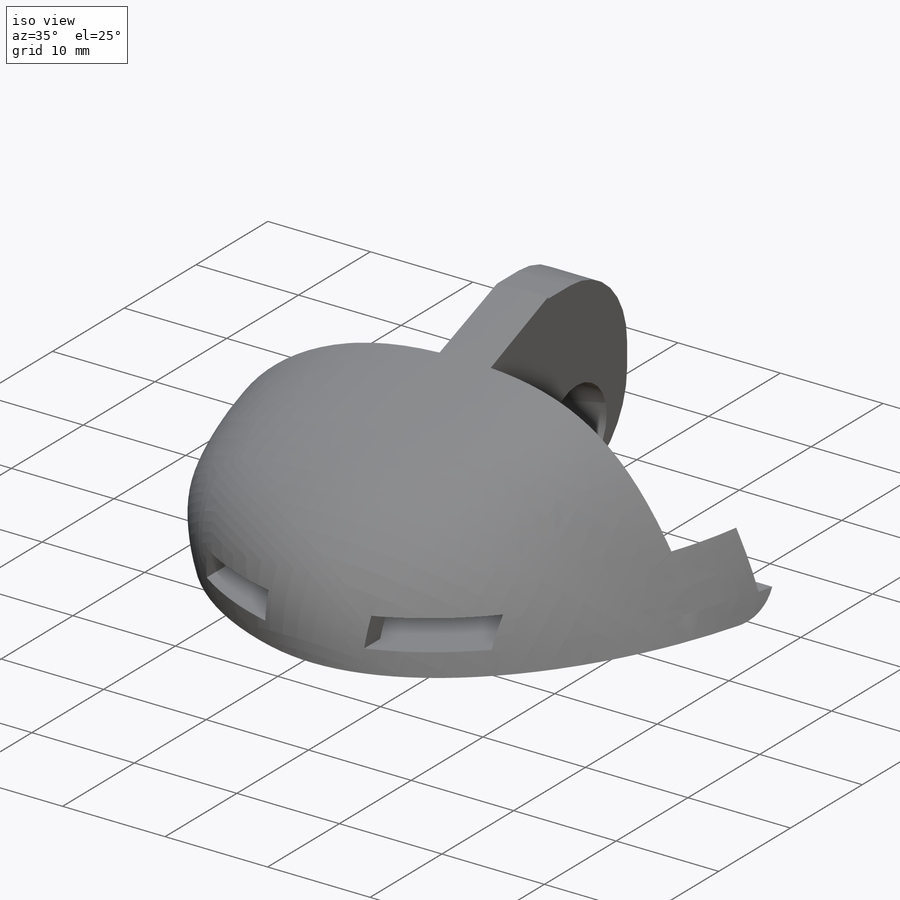
[diagram: iso view]
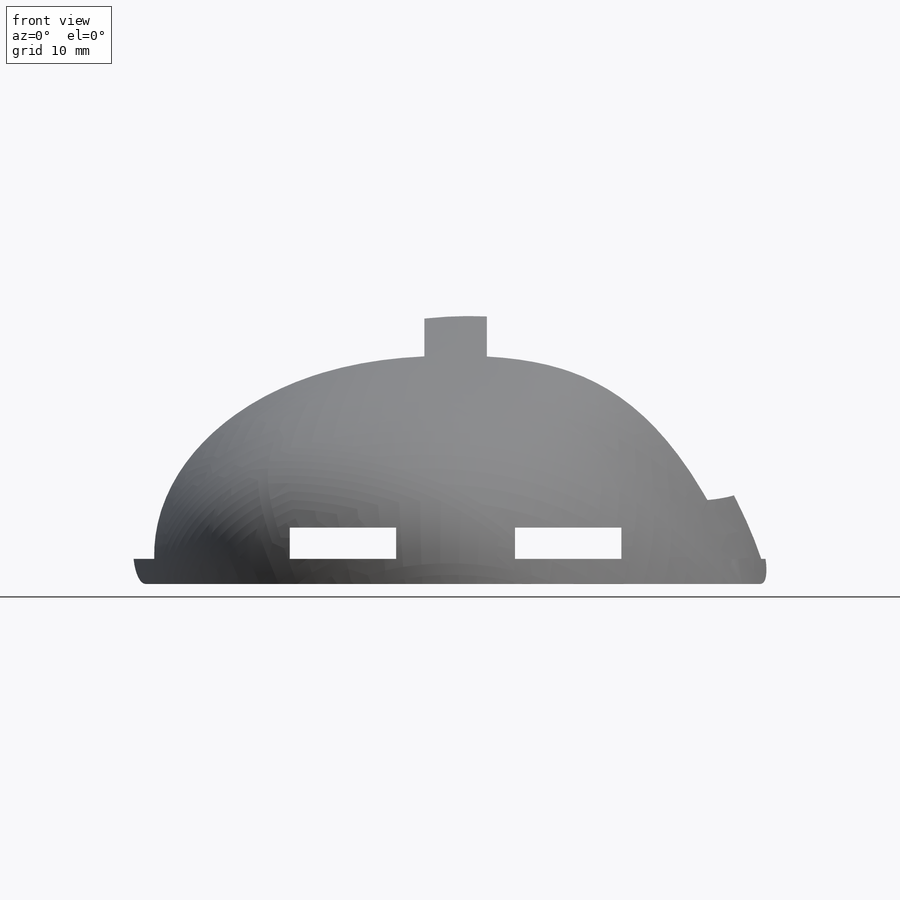
[diagram: front view]
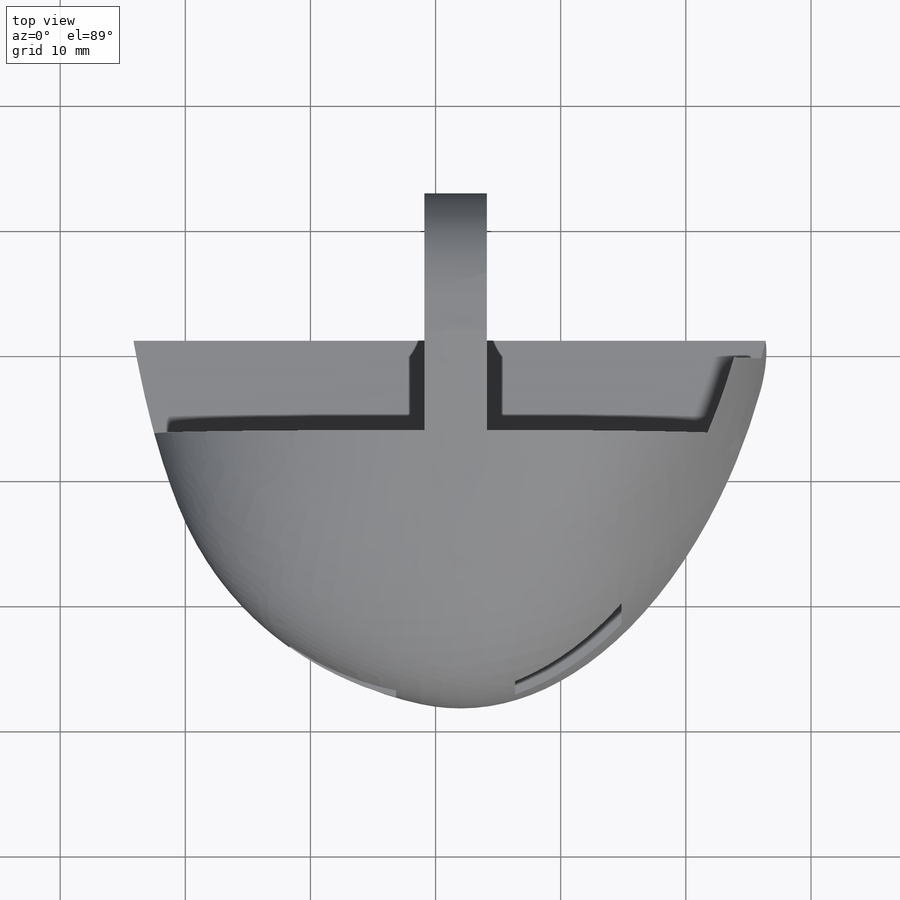
[diagram: top view]
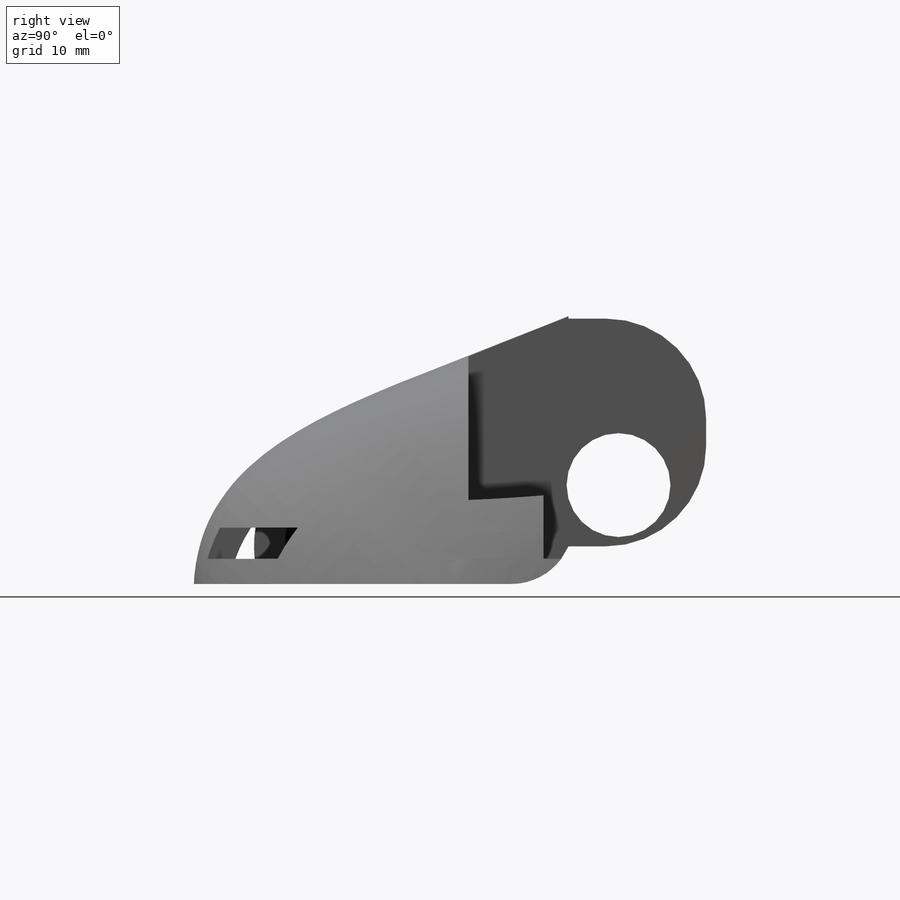
[diagram: right view]
SOLIDWORKS PART (.sldprt)
format: sldprt  version: not decoded by parser v0  size: 13,806,592 bytes
history: native  units: mm
features: sketch x45, plane x20, cut_extrude x9, extrude x4, fillet x4, material x1, shell x1, mirror x1, delete_body x1 + 1 further entry (+14 scaffold rows collapsed; 3 parser-record rows omitted)
feature tree (104):
  scaffold x14  (default folders/planes/origin — collapsed)
  material  "Polyamide"
  plane  "Plan de face"
  plane  "Plan de dessus"
  plane  "Plan de droite"
  plane  "Front Plane-new_foot"
  plane  "Top Plane-new_foot"
  plane  "Right Plane-new_foot"
  sketch  "lateral_dimensions-new_foot"  dims[D1=51.0mm D2=98.0mm D3=47.0mm D4=29.8mm D5=104.3mm D6=134.1mm D7=31.8mm D8=4.0mm D9=15.0mm]
  sketch  "planes_positions-new_foot"
  sketch  "top_dimensions-new_foot"  dims[c1.D1=28.5mm c1.D2=26.0mm c2.D1=26.0mm c2.D2=28.5mm]
  sketch  "lateral_shape-new_foot"
  plane  "sole_plane-new_foot"
  sketch  "sole_shape-new_foot"  dims[D1=~51.73616mm]
  plane  "mid_top_plane-new_foot"
  sketch  "mid_top_dimensions-new_foot"
  sketch  "Sketch1-new_foot"
  plane  "Plane2-new_foot"
  sketch  "Sketch2-new_foot"
  plane  "Plane3-new_foot"
  sketch  "Sketch3-new_foot"
  plane  "Plane4-new_foot"
  sketch  "Sketch4-new_foot"
  plane  "Plane6-new_foot"
  sketch  "Sketch6-new_foot"
  plane  "Plane8-new_foot"
  sketch  "Sketch8-new_foot"
  plane  "Plane9-new_foot"
  sketch  "Sketch9-new_foot"
  plane  "Plane7-new_foot"
  sketch  "3DSketch3-new_foot"
  sketch  "3DSketch8-new_foot"
  sketch  "3DSketch9-new_foot"
  sketch  "3DSketch1-new_foot"
  sketch  "3DSketch2-new_foot"
  sketch  "3DSketch6-new_foot"
  sketch  "3DSketch4-new_foot"
  sketch  "3DSketch5-new_foot"
  plane  "Plane11-new_foot"
  sketch  "Sketch22-new_foot"
  sketch  "Sketch24-new_foot"  dims[D1=1.0mm]
  sketch  "Sketch26-new_foot"
  sketch  "Sketch27-new_foot"  dims[D1=18.0mm]
  sketch  "Sketch28-new_foot"  dims[c1.D1=16.0mm c1.D2=16.0mm c1.D3=16.0mm c2.D2=9.0mm c2.D3=2.0mm]
  plane  "Plane10-new_foot"
  sketch  "Sketch11-new_foot"  dims[D1=47.0mm D2=25.0mm D3=26.0mm D4=3.0mm D5=3.0mm]
  sketch  "Sketch12-new_foot"  dims[c1.D1=8.3mm c1.D2=8.3mm c1.D3=8.3mm c1.D4=8.3mm c2.D2=39.0mm c2.D3=12.5mm c2.D4=5.0mm c2.D5=3.0mm c2.D6=3.0mm c2.D7=19.0mm c3.D5=5.0mm]
  sketch  "Sketch21-new_foot"  dims[D1=5.0mm D2=22.0mm]
  plane  "Plane5-new_foot"
  sketch  "Sketch35-new_foot"  dims[D1=5.0mm D2=24.0mm]
  sketch  "Sketch36-new_foot"
  sketch  "Sketch37-new_foot"
  "new_foot"
  parser-record x3  (decoder bookkeeping rows leaked as tree rows — omitted from the tree; the rows remain in map.json)
  plane  "Plane31"
  shell  "Shell1"  Thickness=2mm
  sketch  "Sketch42"  dims[D1=5.0mm D2=7.0mm D3=0.9mm]
  extrude  "Boss-Extrude1"  [1 undecoded]
  sketch  "Sketch47"  dims[D1=8.0mm D2=8.0mm]
  cut_extrude  "Cut-Extrude4"  [1 undecoded]
  sketch  "Sketch43"  dims[D1=11.0mm D2=20.0mm]
  extrude  "Boss-Extrude2"  [1 undecoded]
  sketch  "Sketch44"  dims[c1.D1=8.3mm c1.D2=16.0mm c1.D3=16.0mm c2.D2=5.9mm c2.D3=4.0mm]
  cut_extrude  "Cut-Extrude1"  [1 undecoded]
  sketch  "Sketch46"  dims[D1=1.0mm]
  cut_extrude  "Cut-Extrude3"  [1 undecoded]
  sketch  "Sketch48"  dims[D1=5.0mm]
  extrude  "Boss-Extrude3"  [1 undecoded]
  sketch  "Sketch50"  dims[D1=3.0mm D2=3.0mm D3=12.0mm D4=12.0mm D5=1.0mm D6=1.0mm D7=3.0mm D8=3.0mm]
  extrude  "Boss-Extrude4"  [1 undecoded]
  sketch  "Sketch51"  dims[D1=8.5mm D2=1.25mm D3=2.5mm D4=8.5mm D5=1.25mm D6=2.5mm]
  cut_extrude  "Cut-Extrude5"  [1 undecoded]
  sketch  "Sketch52"  dims[D1=20.0mm]
  cut_extrude  "Cut-Extrude6"  [1 undecoded]
  sketch  "Sketch53"  dims[D1=20.0mm]
  cut_extrude  "Cut-Extrude7"  [1 undecoded]
  sketch  "Sketch54"
  cut_extrude  "Cut-Extrude8"  [1 undecoded]
  sketch  "Sketch56"  dims[D1=12.0mm D2=11.8mm]
  cut_extrude  "Cut-Extrude10"  [1 undecoded]
  sketch  "Sketch55"  dims[D1=12.5mm D2=11.8mm]
  cut_extrude  "Cut-Extrude9"  [1 undecoded]
  fillet  "Fillet1"  Radius=8mm
  fillet  "Fillet3"  Radius=2mm
  fillet  "Fillet2"  Radius=5mm
  fillet  "Fillet4"  Radius=1.5mm
  plane  "Plane32"  Offset=30mm
  mirror  "Mirror1"
  delete_body  "Body-Delete1"
decode coverage: 27 of 65 modeling features carry decoded parameters; 1 rows unclassified (native names shown)
note: ~ marks probable driven/reference dimensions
note: 13 parameter values undecoded
summary: no parameter record found for 13 features
note: suppression state not decoded; provenance and decode notes live in map.json
